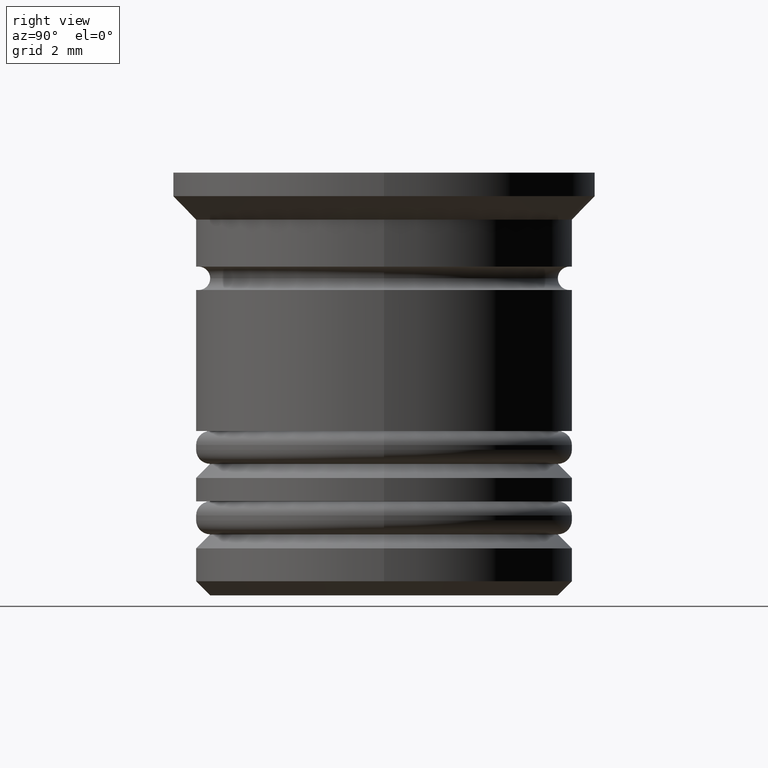
[diagram: clean part render]
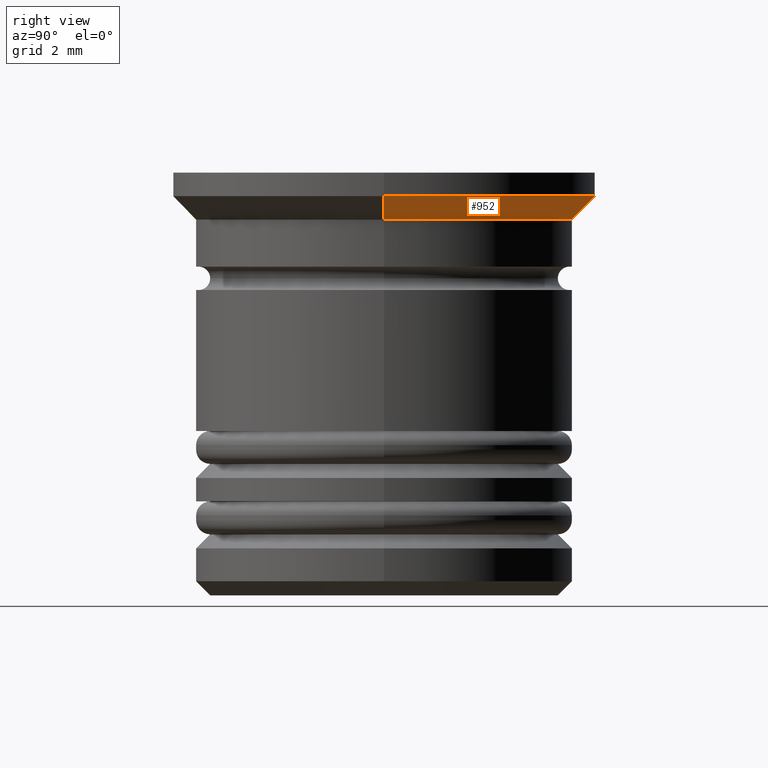
[diagram: same view with one face highlighted and labeled with its STEP entity id]
A machine part, right view. The second image highlights one B-rep face of the part: STEP entity #952.
In plain terms, the highlighted conical surface has half-angle 45 deg.
Its self-contained STEP definition (entity closure, byte-faithful):
#121 = CARTESIAN_POINT ( 'NONE',  ( -4.000000000000000000, 4.898587196589412829E-16, -0.9999999999999997780 ) ) ;
#128 = DIRECTION ( 'NONE',  ( -1.000000000000000000, 0.000000000000000000, 0.000000000000000000 ) ) ;
#139 = LINE ( 'NONE', #924, #705 ) ;
#232 = DIRECTION ( 'NONE',  ( -0.7071067811865487940, 8.659560562354950115E-17, 0.7071067811865463515 ) ) ;
#276 = CARTESIAN_POINT ( 'NONE',  ( -4.500000000000000000, 5.510910596163088569E-16, -0.5000000000000011102 ) ) ;
#310 = CIRCLE ( 'NONE', #1243, 4.000000000000000000 ) ;
#453 = DIRECTION ( 'NONE',  ( 1.000000000000000000, 0.000000000000000000, 0.000000000000000000 ) ) ;
#468 = VERTEX_POINT ( 'NONE', #1178 ) ;
#521 = VERTEX_POINT ( 'NONE', #1346 ) ;
#599 = CONICAL_SURFACE ( 'NONE', #744, 4.500000000000000000, 0.7853981633974500554 ) ;
#660 = ORIENTED_EDGE ( 'NONE', *, *, #949, .F. ) ;
#705 = VECTOR ( 'NONE', #1059, 1000.000000000000000 ) ;
#711 = EDGE_CURVE ( 'NONE', #759, #852, #732, .T. ) ;
#732 = LINE ( 'NONE', #276, #995 ) ;
#744 = AXIS2_PLACEMENT_3D ( 'NONE', #1854, #1517, #453 ) ;
#759 = VERTEX_POINT ( 'NONE', #121 ) ;
#771 = FACE_OUTER_BOUND ( 'NONE', #1801, .T. ) ;
#852 = VERTEX_POINT ( 'NONE', #1593 ) ;
#896 = CARTESIAN_POINT ( 'NONE',  ( 0.000000000000000000, 0.000000000000000000, -0.5000000000000011102 ) ) ;
#924 = CARTESIAN_POINT ( 'NONE',  ( 4.500000000000000000, 0.000000000000000000, -0.5000000000000011102 ) ) ;
#942 = DIRECTION ( 'NONE',  ( -0.000000000000000000, -0.000000000000000000, 1.000000000000000000 ) ) ;
#949 = EDGE_CURVE ( 'NONE', #468, #521, #139, .T. ) ;
#952 = ADVANCED_FACE ( 'NONE', ( #771 ), #599, .T. ) ;
#995 = VECTOR ( 'NONE', #232, 1000.000000000000000 ) ;
#1028 = CIRCLE ( 'NONE', #2003, 4.500000000000000000 ) ;
#1059 = DIRECTION ( 'NONE',  ( 0.7071067811865487940, 0.000000000000000000, 0.7071067811865463515 ) ) ;
#1065 = EDGE_CURVE ( 'NONE', #521, #852, #1028, .T. ) ;
#1069 = ORIENTED_EDGE ( 'NONE', *, *, #1065, .F. ) ;
#1178 = CARTESIAN_POINT ( 'NONE',  ( 4.000000000000000000, 0.000000000000000000, -0.9999999999999997780 ) ) ;
#1223 = DIRECTION ( 'NONE',  ( 1.000000000000000000, 0.000000000000000000, 0.000000000000000000 ) ) ;
#1243 = AXIS2_PLACEMENT_3D ( 'NONE', #2029, #942, #1223 ) ;
#1288 = ORIENTED_EDGE ( 'NONE', *, *, #711, .T. ) ;
#1346 = CARTESIAN_POINT ( 'NONE',  ( 4.500000000000000000, 0.000000000000000000, -0.5000000000000011102 ) ) ;
#1517 = DIRECTION ( 'NONE',  ( -0.000000000000000000, -0.000000000000000000, 1.000000000000000000 ) ) ;
#1526 = EDGE_CURVE ( 'NONE', #468, #759, #310, .T. ) ;
#1593 = CARTESIAN_POINT ( 'NONE',  ( -4.500000000000000000, 5.510910596163088569E-16, -0.5000000000000011102 ) ) ;
#1801 = EDGE_LOOP ( 'NONE', ( #1918, #1288, #1069, #660 ) ) ;
#1854 = CARTESIAN_POINT ( 'NONE',  ( 0.000000000000000000, 0.000000000000000000, -0.5000000000000011102 ) ) ;
#1862 = DIRECTION ( 'NONE',  ( -0.000000000000000000, -0.000000000000000000, 1.000000000000000000 ) ) ;
#1918 = ORIENTED_EDGE ( 'NONE', *, *, #1526, .T. ) ;
#2003 = AXIS2_PLACEMENT_3D ( 'NONE', #896, #1862, #128 ) ;
#2029 = CARTESIAN_POINT ( 'NONE',  ( 0.000000000000000000, 0.000000000000000000, -0.9999999999999997780 ) ) ;